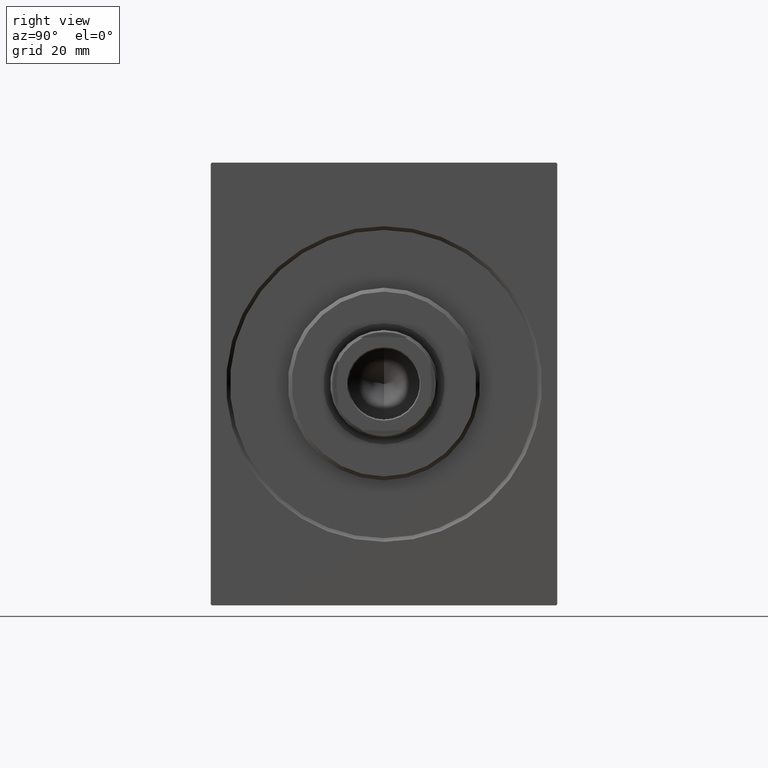
[diagram: clean part render]
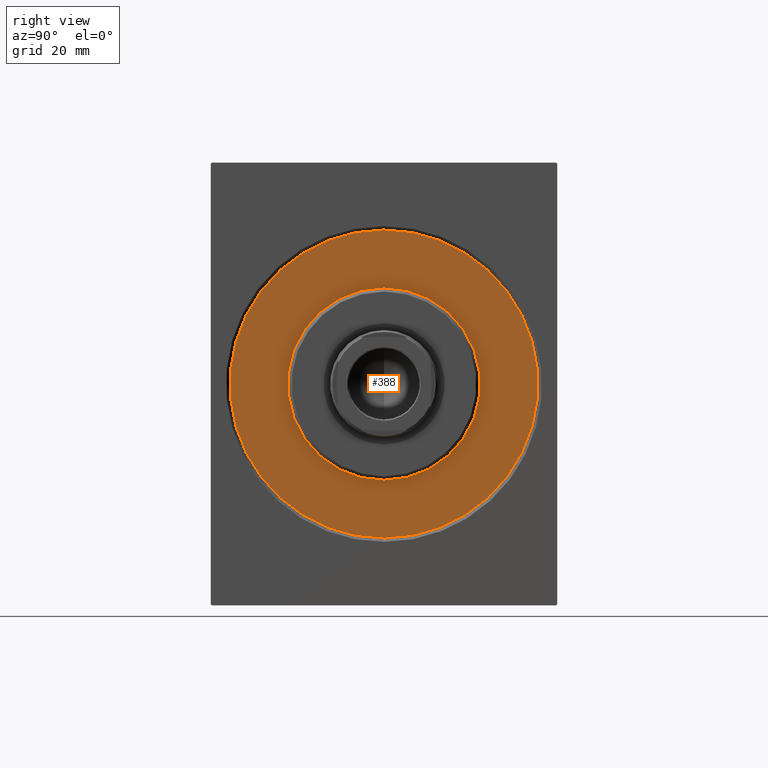
[diagram: same view with one face highlighted and labeled with its STEP entity id]
A machine part, right view. The second image highlights one B-rep face of the part: STEP entity #388.
In plain terms, the highlighted planar face has unit normal (1, 0, 0).
Its self-contained STEP definition (entity closure, byte-faithful):
#388 = ADVANCED_FACE ( 'NONE', ( #12857, #22784 ), #2944, .T. ) ;
#997 = AXIS2_PLACEMENT_3D ( 'NONE', #4178, #3171, #14071 ) ;
#1305 = VERTEX_POINT ( 'NONE', #30290 ) ;
#1738 = EDGE_CURVE ( 'NONE', #36584, #10799, #29929, .T. ) ;
#1831 = DIRECTION ( 'NONE',  ( 1.000000000000000000, 0.000000000000000000, 0.000000000000000000 ) ) ;
#2944 = PLANE ( 'NONE',  #997 ) ;
#2971 = CARTESIAN_POINT ( 'NONE',  ( 0.000000000000000000, 0.000000000000000000, 0.000000000000000000 ) ) ;
#3171 = DIRECTION ( 'NONE',  ( 1.000000000000000000, 0.000000000000000000, 0.000000000000000000 ) ) ;
#3841 = CIRCLE ( 'NONE', #18243, 40.00000000000000000 ) ;
#4178 = CARTESIAN_POINT ( 'NONE',  ( 0.000000000000000000, 0.000000000000000000, 0.000000000000000000 ) ) ;
#5493 = ORIENTED_EDGE ( 'NONE', *, *, #1738, .F. ) ;
#6810 = CARTESIAN_POINT ( 'NONE',  ( 0.000000000000000000, 0.000000000000000000, -40.00000000000000000 ) ) ;
#10087 = DIRECTION ( 'NONE',  ( 0.000000000000000000, 0.000000000000000000, -1.000000000000000000 ) ) ;
#10295 = DIRECTION ( 'NONE',  ( 1.000000000000000000, 0.000000000000000000, 0.000000000000000000 ) ) ;
#10799 = VERTEX_POINT ( 'NONE', #41468 ) ;
#11350 = AXIS2_PLACEMENT_3D ( 'NONE', #35532, #42435, #28076 ) ;
#12027 = DIRECTION ( 'NONE',  ( 1.000000000000000000, -0.000000000000000000, 0.000000000000000000 ) ) ;
#12857 = FACE_OUTER_BOUND ( 'NONE', #16541, .T. ) ;
#13011 = EDGE_CURVE ( 'NONE', #29603, #1305, #21821, .T. ) ;
#14071 = DIRECTION ( 'NONE',  ( 0.000000000000000000, 0.000000000000000000, -1.000000000000000000 ) ) ;
#15259 = CARTESIAN_POINT ( 'NONE',  ( 0.000000000000000000, 0.000000000000000000, 0.000000000000000000 ) ) ;
#16541 = EDGE_LOOP ( 'NONE', ( #33339, #40655 ) ) ;
#18243 = AXIS2_PLACEMENT_3D ( 'NONE', #2971, #10295, #10087 ) ;
#21546 = EDGE_CURVE ( 'NONE', #1305, #29603, #3841, .T. ) ;
#21658 = DIRECTION ( 'NONE',  ( 0.000000000000000000, 0.000000000000000000, -1.000000000000000000 ) ) ;
#21821 = CIRCLE ( 'NONE', #42441, 40.00000000000000000 ) ;
#22784 = FACE_BOUND ( 'NONE', #31432, .T. ) ;
#27224 = EDGE_CURVE ( 'NONE', #10799, #36584, #35865, .T. ) ;
#28076 = DIRECTION ( 'NONE',  ( 0.000000000000000000, 0.000000000000000000, -1.000000000000000000 ) ) ;
#28405 = DIRECTION ( 'NONE',  ( 0.000000000000000000, 0.000000000000000000, -1.000000000000000000 ) ) ;
#29339 = CARTESIAN_POINT ( 'NONE',  ( 0.000000000000000000, 0.000000000000000000, 25.00000000000000000 ) ) ;
#29603 = VERTEX_POINT ( 'NONE', #6810 ) ;
#29929 = CIRCLE ( 'NONE', #11350, 25.00000000000000000 ) ;
#30290 = CARTESIAN_POINT ( 'NONE',  ( 0.000000000000000000, 4.898587196589413026E-15, 40.00000000000000000 ) ) ;
#31333 = CARTESIAN_POINT ( 'NONE',  ( 0.000000000000000000, 0.000000000000000000, 0.000000000000000000 ) ) ;
#31432 = EDGE_LOOP ( 'NONE', ( #5493, #32278 ) ) ;
#32278 = ORIENTED_EDGE ( 'NONE', *, *, #27224, .F. ) ;
#33339 = ORIENTED_EDGE ( 'NONE', *, *, #13011, .T. ) ;
#35532 = CARTESIAN_POINT ( 'NONE',  ( 0.000000000000000000, 0.000000000000000000, 0.000000000000000000 ) ) ;
#35865 = CIRCLE ( 'NONE', #41361, 25.00000000000000000 ) ;
#36584 = VERTEX_POINT ( 'NONE', #29339 ) ;
#40655 = ORIENTED_EDGE ( 'NONE', *, *, #21546, .T. ) ;
#41361 = AXIS2_PLACEMENT_3D ( 'NONE', #15259, #12027, #28405 ) ;
#41468 = CARTESIAN_POINT ( 'NONE',  ( 0.000000000000000000, 3.061616997868383043E-15, -25.00000000000000000 ) ) ;
#42435 = DIRECTION ( 'NONE',  ( 1.000000000000000000, -0.000000000000000000, 0.000000000000000000 ) ) ;
#42441 = AXIS2_PLACEMENT_3D ( 'NONE', #31333, #1831, #21658 ) ;